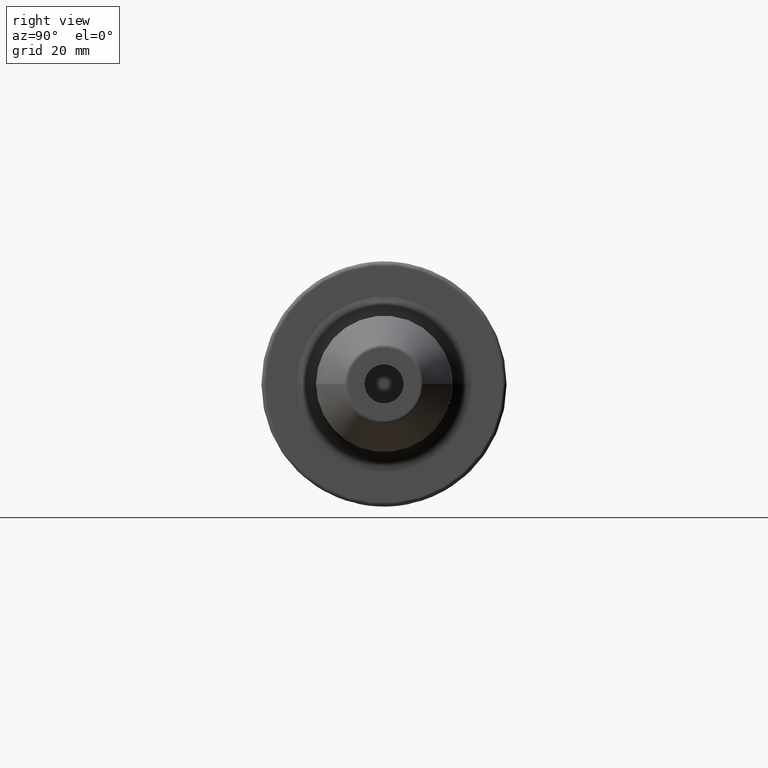
[diagram: clean part render]
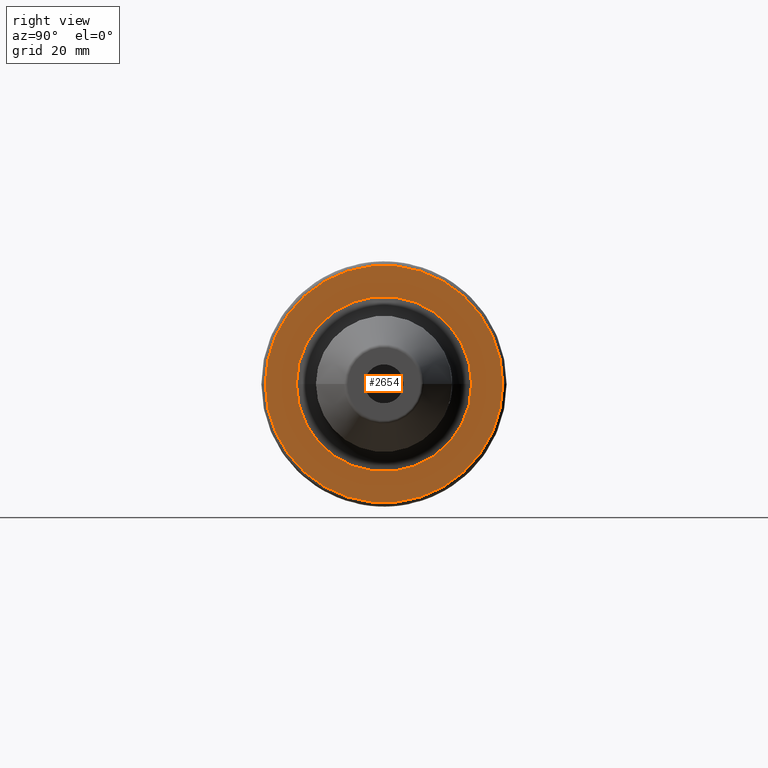
[diagram: same view with one face highlighted and labeled with its STEP entity id]
A machine part, right view. The second image highlights one B-rep face of the part: STEP entity #2654.
In plain terms, the highlighted planar face has unit normal (1, 0, 0).
Its self-contained STEP definition (entity closure, byte-faithful):
#816=CARTESIAN_POINT('',(2.7E1,0.E0,0.E0));
#817=DIRECTION('',(1.E0,0.E0,0.E0));
#818=DIRECTION('',(0.E0,1.E0,0.E0));
#819=AXIS2_PLACEMENT_3D('',#816,#817,#818);
#831=CARTESIAN_POINT('',(2.7E1,0.E0,0.E0));
#832=DIRECTION('',(-1.E0,0.E0,0.E0));
#833=DIRECTION('',(0.E0,1.E0,0.E0));
#834=AXIS2_PLACEMENT_3D('',#831,#832,#833);
#836=CARTESIAN_POINT('',(2.7E1,0.E0,0.E0));
#837=DIRECTION('',(1.E0,0.E0,0.E0));
#838=DIRECTION('',(0.E0,-1.E0,0.E0));
#839=AXIS2_PLACEMENT_3D('',#836,#837,#838);
#841=CARTESIAN_POINT('',(2.7E1,0.E0,0.E0));
#842=DIRECTION('',(1.E0,0.E0,0.E0));
#843=DIRECTION('',(0.E0,1.E0,0.E0));
#844=AXIS2_PLACEMENT_3D('',#841,#842,#843);
#1430=CARTESIAN_POINT('',(2.7E1,3.04875E1,0.E0));
#1431=VERTEX_POINT('',#1430);
#1432=CARTESIAN_POINT('',(2.7E1,-3.04875E1,0.E0));
#1433=VERTEX_POINT('',#1432);
#1531=CARTESIAN_POINT('',(2.7E1,-2.25E1,0.E0));
#1532=CARTESIAN_POINT('',(2.7E1,2.25E1,0.E0));
#1533=VERTEX_POINT('',#1531);
#1534=VERTEX_POINT('',#1532);
#2639=CARTESIAN_POINT('',(2.7E1,0.E0,0.E0));
#2640=DIRECTION('',(1.E0,0.E0,0.E0));
#2641=DIRECTION('',(0.E0,-1.E0,0.E0));
#2642=AXIS2_PLACEMENT_3D('',#2639,#2640,#2641);
#2643=PLANE('',#2642);
#2644=ORIENTED_EDGE('',*,*,#2634,.T.);
#2645=ORIENTED_EDGE('',*,*,#2618,.F.);
#2646=EDGE_LOOP('',(#2644,#2645));
#2647=FACE_OUTER_BOUND('',#2646,.F.);
#2649=ORIENTED_EDGE('',*,*,#2648,.T.);
#2651=ORIENTED_EDGE('',*,*,#2650,.T.);
#2652=EDGE_LOOP('',(#2649,#2651));
#2653=FACE_BOUND('',#2652,.F.);
#2654=ADVANCED_FACE('',(#2647,#2653),#2643,.T.);
#820=CIRCLE('',#819,3.04875E1);
#835=CIRCLE('',#834,3.04875E1);
#840=CIRCLE('',#839,2.25E1);
#845=CIRCLE('',#844,2.25E1);
#2618=EDGE_CURVE('',#1431,#1433,#820,.T.);
#2634=EDGE_CURVE('',#1431,#1433,#835,.T.);
#2648=EDGE_CURVE('',#1533,#1534,#840,.T.);
#2650=EDGE_CURVE('',#1534,#1533,#845,.T.);